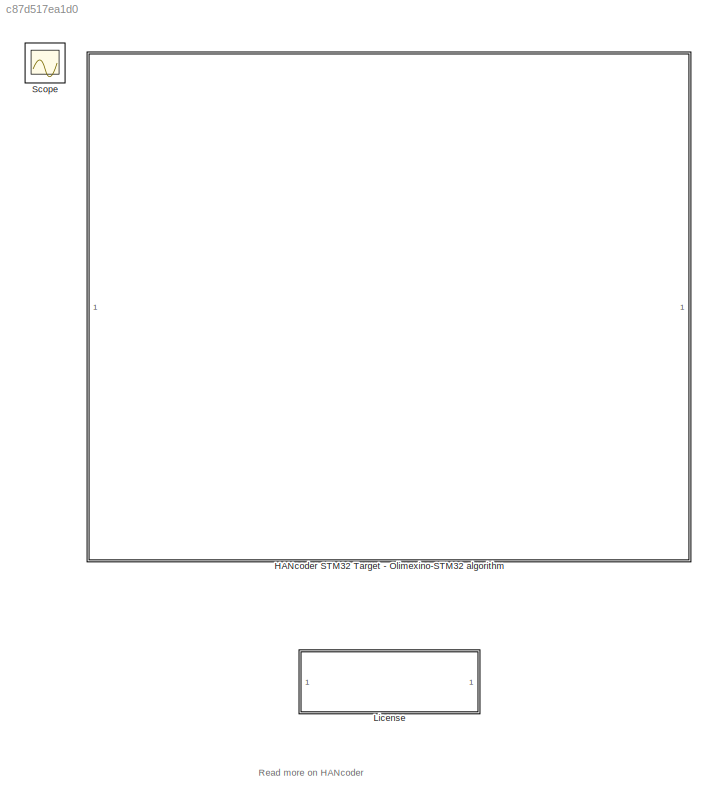
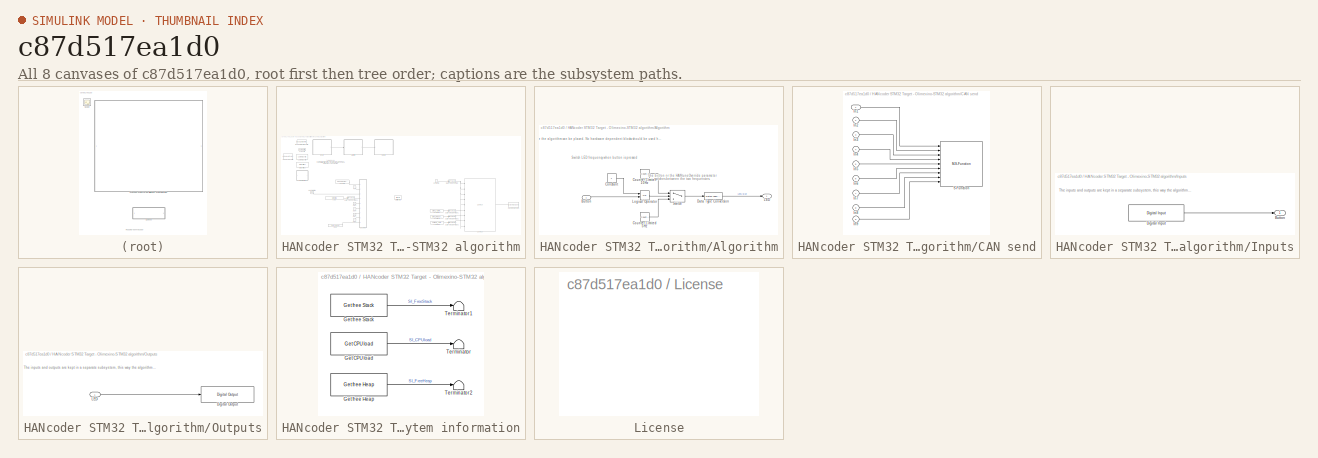
[diagram: thumbnail index - all 8 canvases of the model, root first then tree order]
MODEL slx_c87d517ea1d0
KIND model
CONFIG AbsTol = auto
CONFIG EnableMultiTasking = off
CONFIG FixedStep = 0.01
CONFIG MaxStep = auto
CONFIG MinStep = auto
CONFIG PreLoadFcn = librarySetup\neval([bdroot,'_startup']) %Calling [modelName]_startup.m
CONFIG RelTol = 1e-3
CONFIG SampleTimeConstraint = Unconstrained
CONFIG Solver = FixedStepDiscrete
CONFIG SolverName = FixedStepDiscrete
CONFIG StartTime = 0.0
CONFIG StopTime = 2
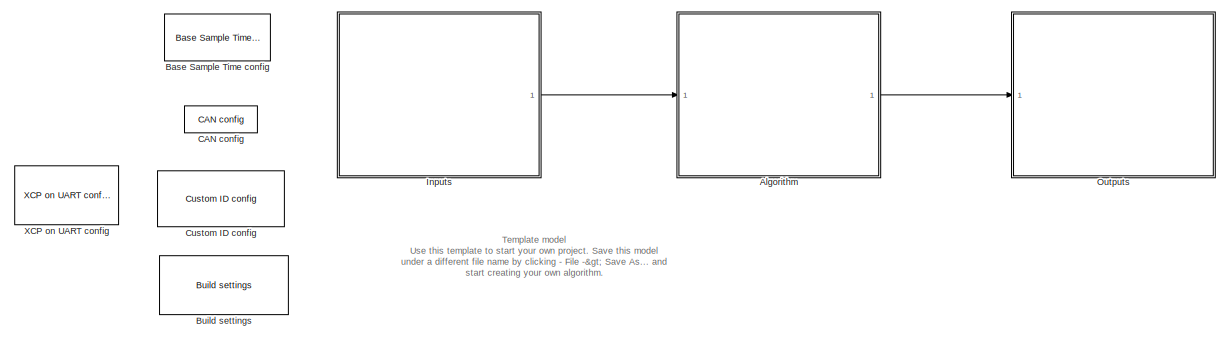
[diagram: HANcoder STM32 Target - Olimexino-STM32 algorithm - part 1/3, top left region]
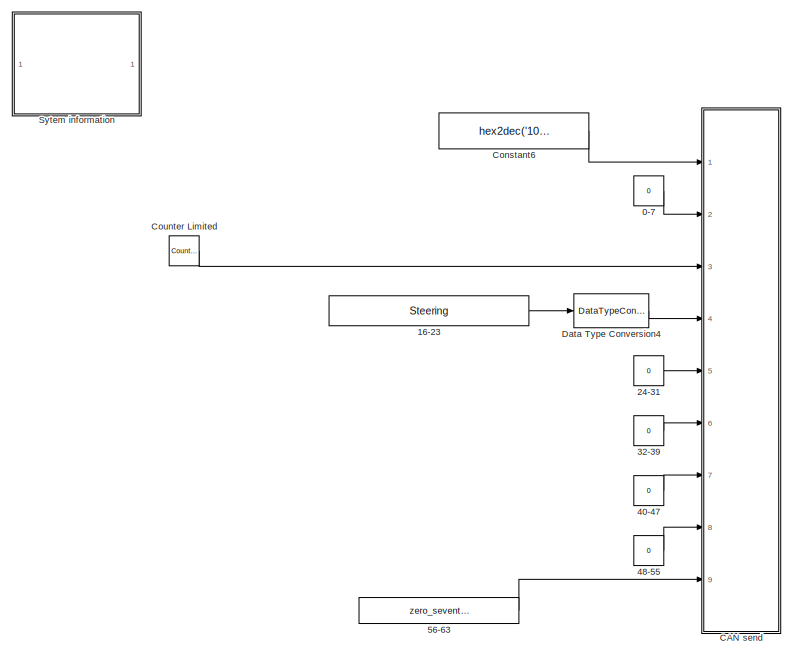
[diagram: HANcoder STM32 Target - Olimexino-STM32 algorithm - part 2/3, middle left region]
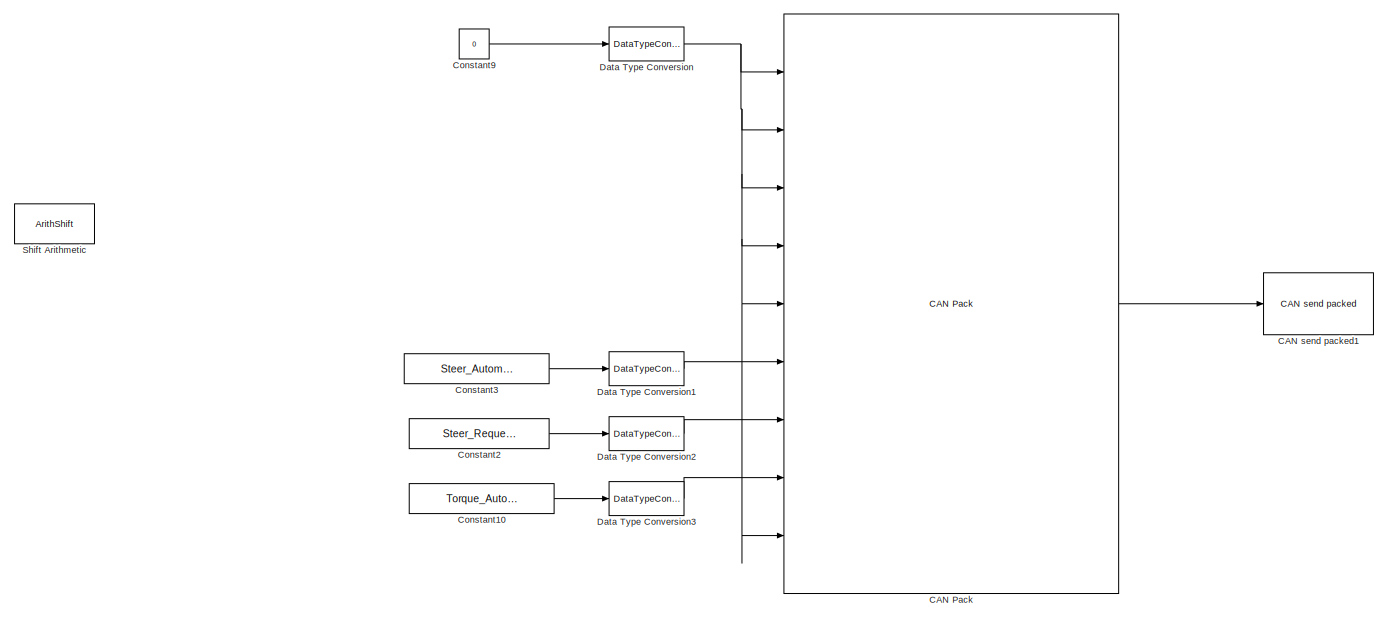
[diagram: HANcoder STM32 Target - Olimexino-STM32 algorithm - part 3/3, bottom right region]
BLOCK [SubSystem] HANcoder STM32 Target - Olimexino-STM32 algorithm
  CopyFcn = HANcoderChecks('Copy');
  MoveFcn = HANcoderChecks('MoveOlimexino');
  NameChangeFcn = HANcoderChecks('NameChangeOlimexino');
  Ports = []
  RequestExecContextInheritance = off
BLOCK [Constant] HANcoder STM32 Target - Olimexino-STM32 algorithm/0-7
  Commented = on
  OutDataTypeStr = uint8
  Value = 0
BLOCK [Constant] HANcoder STM32 Target - Olimexino-STM32 algorithm/16-23
  Commented = on
  OutDataTypeStr = int8
  Value = Steering
BLOCK [Constant] HANcoder STM32 Target - Olimexino-STM32 algorithm/24-31
  Commented = on
  OutDataTypeStr = uint8
  Value = 0
BLOCK [Constant] HANcoder STM32 Target - Olimexino-STM32 algorithm/32-39
  Commented = on
  OutDataTypeStr = uint8
  Value = 0
BLOCK [Constant] HANcoder STM32 Target - Olimexino-STM32 algorithm/40-47
  Commented = on
  OutDataTypeStr = uint8
  Value = 0
BLOCK [Constant] HANcoder STM32 Target - Olimexino-STM32 algorithm/48-55
  Commented = on
  OutDataTypeStr = uint8
  Value = 0
BLOCK [Constant] HANcoder STM32 Target - Olimexino-STM32 algorithm/56-63
  Commented = on
  OutDataTypeStr = uint8
  Value = zero_seventeen
BLOCK [SubSystem] HANcoder STM32 Target - Olimexino-STM32 algorithm/Algorithm
  Ports = [1, 1]
  RequestExecContextInheritance = off
BLOCK [Inport] HANcoder STM32 Target - Olimexino-STM32 algorithm/Algorithm/Button
  IconDisplay = Port number
BLOCK [Constant] HANcoder STM32 Target - Olimexino-STM32 algorithm/Algorithm/Constant
BLOCK [Reference] HANcoder STM32 Target - Olimexino-STM32 algorithm/Algorithm/Counter Limited 10Hz  REF=simulink/Sources/Counter
Limited
  Ports = [0, 1]
  SourceBlock = simulink/Sources/Counter\nLimited
  SourceProductBaseCode = SL
  SourceProductName = Simulink
  SourceType = Counter Limited
BLOCK [Reference] HANcoder STM32 Target - Olimexino-STM32 algorithm/Algorithm/Counter Limited 5Hz  REF=simulink/Sources/Counter
Limited
  Ports = [0, 1]
  SourceBlock = simulink/Sources/Counter\nLimited
  SourceProductBaseCode = SL
  SourceProductName = Simulink
  SourceType = Counter Limited
BLOCK [DataTypeConversion] HANcoder STM32 Target - Olimexino-STM32 algorithm/Algorithm/Data Type Conversion
  OutDataTypeStr = boolean
  RndMeth = Floor
  SaturateOnIntegerOverflow = off
BLOCK [Outport] HANcoder STM32 Target - Olimexino-STM32 algorithm/Algorithm/LED
  IconDisplay = Port number
BLOCK [Logic] HANcoder STM32 Target - Olimexino-STM32 algorithm/Algorithm/Logical Operator
  AllPortsSameDT = off
  Operator = OR
  OutDataTypeStr = boolean
  Ports = [2, 1]
BLOCK [Switch] HANcoder STM32 Target - Olimexino-STM32 algorithm/Algorithm/Switch
  Criteria = u2 > Threshold
  InputSameDT = off
  SaturateOnIntegerOverflow = off
BLOCK [Reference] HANcoder STM32 Target - Olimexino-STM32 algorithm/Base Sample Time config  REF=HANcoder_STM32_Target/Olimexino STM32/System Config/Base Sample Time config
  Description = HANcoder Target STM32-Olimexino blockset version 1.1
  Ports = []
  SourceBlock = HANcoder_STM32_Target/Olimexino STM32/System Config/Base Sample Time config
  SourceProductName = HANcoder STM32 Target
  SourceType = Base Sample Time config
  Tag = HANcoder_TARGET_STM32_Olimexino
  UserDataPersistent = on
BLOCK [Reference] HANcoder STM32 Target - Olimexino-STM32 algorithm/Build settings  REF=HANcoder_STM32_Target/Olimexino STM32/System Config/Build settings
  Ports = []
  SourceBlock = HANcoder_STM32_Target/Olimexino STM32/System Config/Build settings
  SourceProductName = HANcoder STM32 Target
  SourceType = Build Settings
  Tag = HANcoder_TARGET_STM32_Olimexino
  UserDataPersistent = on
BLOCK [Reference] HANcoder STM32 Target - Olimexino-STM32 algorithm/CAN Pack  REF=canmsglib/CAN Pack
  Commented = on
  Ports = [9, 1]
  SourceBlock = canmsglib/CAN Pack
  SourceProductBaseCode = XP
  SourceProductName = Simulink Real-Time
  SourceType = CAN Pack
BLOCK [Reference] HANcoder STM32 Target - Olimexino-STM32 algorithm/CAN config  REF=HANcoder_STM32_Target/Olimexino STM32/System Config/CAN config
  Ports = []
  SourceBlock = HANcoder_STM32_Target/Olimexino STM32/System Config/CAN config
  SourceProductName = HANcoder STM32 Target
  SourceType = CAN config
  Tag = HANcoder_TARGET_STM32_Olimexino
  UserDataPersistent = on
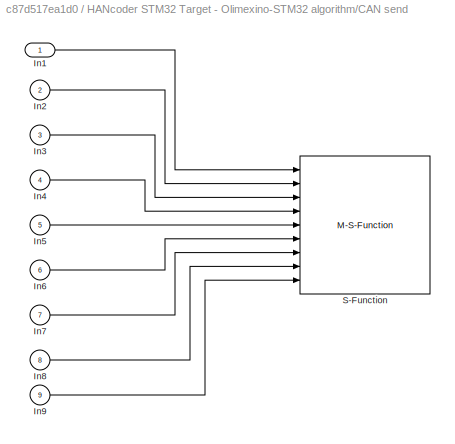
BLOCK [SubSystem] HANcoder STM32 Target - Olimexino-STM32 algorithm/CAN send
  AncestorBlock = HANcoder_STM32_Target/Olimexino STM32/CAN/CAN/CAN send
  Commented = on
  MoveFcn = drawLogos
  Ports = [9]
  RequestExecContextInheritance = off
  Tag = HANcoder_TARGET_STM32_Olimexino
  UserDataPersistent = on
BLOCK [Reference] HANcoder STM32 Target - Olimexino-STM32 algorithm/CAN send packed1  REF=HANcoder_STM32_Target/Olimexino STM32/CAN/CAN/CAN send packed
  Commented = on
  Ports = [1]
  SourceBlock = HANcoder_STM32_Target/Olimexino STM32/CAN/CAN/CAN send packed
  SourceProductName = HANcoder STM32 Target
  SourceType = CAN send packed
  Tag = HANcoder_TARGET_STM32_Olimexino
  UserDataPersistent = on
BLOCK [Inport] HANcoder STM32 Target - Olimexino-STM32 algorithm/CAN send/In1
  IconDisplay = Port number
BLOCK [Inport] HANcoder STM32 Target - Olimexino-STM32 algorithm/CAN send/In2
  IconDisplay = Port number
  Port = 2
BLOCK [Inport] HANcoder STM32 Target - Olimexino-STM32 algorithm/CAN send/In3
  IconDisplay = Port number
  Port = 3
BLOCK [Inport] HANcoder STM32 Target - Olimexino-STM32 algorithm/CAN send/In4
  IconDisplay = Port number
  Port = 4
BLOCK [Inport] HANcoder STM32 Target - Olimexino-STM32 algorithm/CAN send/In5
  IconDisplay = Port number
  Port = 5
BLOCK [Inport] HANcoder STM32 Target - Olimexino-STM32 algorithm/CAN send/In6
  IconDisplay = Port number
  Port = 6
BLOCK [Inport] HANcoder STM32 Target - Olimexino-STM32 algorithm/CAN send/In7
  IconDisplay = Port number
  Port = 7
BLOCK [Inport] HANcoder STM32 Target - Olimexino-STM32 algorithm/CAN send/In8
  IconDisplay = Port number
  Port = 8
BLOCK [Inport] HANcoder STM32 Target - Olimexino-STM32 algorithm/CAN send/In9
  IconDisplay = Port number
  Port = 9
BLOCK [M-S-Function] HANcoder STM32 Target - Olimexino-STM32 algorithm/CAN send/S-Function
  FunctionName = sfcn_can_send
  Parameters = tsamp, canBus, frameType, inputNumber, dataType, byteOrder
  Ports = [9]
BLOCK [Constant] HANcoder STM32 Target - Olimexino-STM32 algorithm/Constant10
  Commented = on
  OutDataTypeStr = single
  SampleTime = -1
  Value = Torque_Automation_Requested
BLOCK [Constant] HANcoder STM32 Target - Olimexino-STM32 algorithm/Constant2
  Commented = on
  OutDataTypeStr = single
  SampleTime = -1
  Value = Steer_Request
BLOCK [Constant] HANcoder STM32 Target - Olimexino-STM32 algorithm/Constant3
  Commented = on
  OutDataTypeStr = single
  SampleTime = -1
  Value = Steer_Automation_Requested
BLOCK [Constant] HANcoder STM32 Target - Olimexino-STM32 algorithm/Constant6
  Commented = on
  OutDataTypeStr = uint32
  SampleTime = -1
  Value = hex2dec('101')
BLOCK [Constant] HANcoder STM32 Target - Olimexino-STM32 algorithm/Constant9
  Commented = on
  OutDataTypeStr = single
  SampleTime = -1
  Value = 0
BLOCK [Reference] HANcoder STM32 Target - Olimexino-STM32 algorithm/Counter Limited  REF=simulink/Sources/Counter
Limited
  Commented = on
  Ports = [0, 1]
  SourceBlock = simulink/Sources/Counter\nLimited
  SourceProductBaseCode = SL
  SourceProductName = Simulink
  SourceType = Counter Limited
BLOCK [Reference] HANcoder STM32 Target - Olimexino-STM32 algorithm/Custom ID config  REF=HANcoder_STM32_Target/Olimexino STM32/System Config/Custom ID config
  Ports = []
  SourceBlock = HANcoder_STM32_Target/Olimexino STM32/System Config/Custom ID config
  SourceProductName = HANcoder STM32 Target
  SourceType = Custom ID config
  Tag = HANcoder_TARGET_STM32_Olimexino
  UserDataPersistent = on
BLOCK [DataTypeConversion] HANcoder STM32 Target - Olimexino-STM32 algorithm/Data Type Conversion
  Commented = on
  RndMeth = Floor
  SaturateOnIntegerOverflow = off
BLOCK [DataTypeConversion] HANcoder STM32 Target - Olimexino-STM32 algorithm/Data Type Conversion1
  Commented = on
  RndMeth = Floor
  SaturateOnIntegerOverflow = off
BLOCK [DataTypeConversion] HANcoder STM32 Target - Olimexino-STM32 algorithm/Data Type Conversion2
  Commented = on
  RndMeth = Floor
  SaturateOnIntegerOverflow = off
BLOCK [DataTypeConversion] HANcoder STM32 Target - Olimexino-STM32 algorithm/Data Type Conversion3
  Commented = on
  RndMeth = Floor
  SaturateOnIntegerOverflow = off
BLOCK [DataTypeConversion] HANcoder STM32 Target - Olimexino-STM32 algorithm/Data Type Conversion4
  Commented = on
  ConvertRealWorld = Stored Integer (SI)
  OutDataTypeStr = uint8
  RndMeth = Floor
  SaturateOnIntegerOverflow = off
BLOCK [SubSystem] HANcoder STM32 Target - Olimexino-STM32 algorithm/Inputs
  Ports = [0, 1]
  RequestExecContextInheritance = off
BLOCK [Outport] HANcoder STM32 Target - Olimexino-STM32 algorithm/Inputs/Button
  IconDisplay = Port number
BLOCK [Reference] HANcoder STM32 Target - Olimexino-STM32 algorithm/Inputs/Digital Input  REF=HANcoder_STM32_Target/Olimexino STM32/Digital Inputs/Digital Input
  Ports = [0, 1]
  SourceBlock = HANcoder_STM32_Target/Olimexino STM32/Digital Inputs/Digital Input
  SourceProductName = HANcoder STM32 Target
  SourceType = Digital Input
  Tag = HANcoder_TARGET_STM32_Olimexino
  UserDataPersistent = on
BLOCK [SubSystem] HANcoder STM32 Target - Olimexino-STM32 algorithm/Outputs
  Ports = [1]
  RequestExecContextInheritance = off
BLOCK [Reference] HANcoder STM32 Target - Olimexino-STM32 algorithm/Outputs/Digital Output  REF=HANcoder_STM32_Target/Olimexino STM32/Digital Outputs/Digital Output
  Ports = [1]
  SourceBlock = HANcoder_STM32_Target/Olimexino STM32/Digital Outputs/Digital Output
  SourceProductName = HANcoder STM32 Target
  SourceType = Digital Output
  Tag = HANcoder_TARGET_STM32_Olimexino
  UserDataPersistent = on
BLOCK [Inport] HANcoder STM32 Target - Olimexino-STM32 algorithm/Outputs/LED
  IconDisplay = Port number
BLOCK [ArithShift] HANcoder STM32 Target - Olimexino-STM32 algorithm/Shift Arithmetic
  BitShiftNumber = 8
  Commented = on
  InputPortMap = u0
  Ports = [1, 1]
BLOCK [SubSystem] HANcoder STM32 Target - Olimexino-STM32 algorithm/Sytem information
  Ports = []
  RequestExecContextInheritance = off
BLOCK [Reference] HANcoder STM32 Target - Olimexino-STM32 algorithm/Sytem information/Get CPU load  REF=HANcoder_STM32_Target/Olimexino STM32/System Management/Get CPU load
  Ports = [0, 1]
  SourceBlock = HANcoder_STM32_Target/Olimexino STM32/System Management/Get CPU load
  SourceProductName = HANcoder STM32 Target
  SourceType = Get CPU load
  Tag = HANcoder_TARGET_STM32_Olimexino
  UserDataPersistent = on
BLOCK [Reference] HANcoder STM32 Target - Olimexino-STM32 algorithm/Sytem information/Get free Heap  REF=HANcoder_STM32_Target/Olimexino STM32/System Management/Get free Heap
  Ports = [0, 1]
  SourceBlock = HANcoder_STM32_Target/Olimexino STM32/System Management/Get free Heap
  SourceProductName = HANcoder STM32 Target
  SourceType = Get free Heap
  Tag = HANcoder_TARGET_STM32_Olimexino
  UserDataPersistent = on
BLOCK [Reference] HANcoder STM32 Target - Olimexino-STM32 algorithm/Sytem information/Get free Stack  REF=HANcoder_STM32_Target/Olimexino STM32/System Management/Get free Stack
  Ports = [0, 1]
  SourceBlock = HANcoder_STM32_Target/Olimexino STM32/System Management/Get free Stack
  SourceProductName = HANcoder STM32 Target
  SourceType = Get free Stack
  Tag = HANcoder_TARGET_STM32_Olimexino
  UserDataPersistent = on
BLOCK [Terminator] HANcoder STM32 Target - Olimexino-STM32 algorithm/Sytem information/Terminator
BLOCK [Terminator] HANcoder STM32 Target - Olimexino-STM32 algorithm/Sytem information/Terminator1
BLOCK [Terminator] HANcoder STM32 Target - Olimexino-STM32 algorithm/Sytem information/Terminator2
BLOCK [Reference] HANcoder STM32 Target - Olimexino-STM32 algorithm/XCP on UART config  REF=HANcoder_STM32_Target/Olimexino STM32/System Config/XCP on UART config
  Ports = []
  SourceBlock = HANcoder_STM32_Target/Olimexino STM32/System Config/XCP on UART config
  SourceProductName = HANcoder STM32 Target
  SourceType = XCP on UART config
  Tag = HANcoder_TARGET_STM32_Olimexino
  UserDataPersistent = on
BLOCK [SubSystem] License
  MoveFcn = HANcoderChecks('MoveLicenseBlock');
  NameChangeFcn = HANcoderChecks('NameChangeLicenseBlock');
  OpenFcn = winopen('License.pdf')
  Ports = []
  RequestExecContextInheritance = off
  ShowPortLabels = none
BLOCK [Scope] Scope
  Floating = off
  IOType = viewer
  NumInputPorts = 1
  Ports = []
  ScopeSpecificationString = C++SS(StrPVP('Location','[176, 640, 919, 945]'),StrPVP('Open','off'),MxPVP('AxesTitles',53,'struct(''axes1'',''%<SignalLabel>'')'),MxPVP('ScopeGraphics',56,'struct(''FigureColor'',''[0.156862745098039 0.156862745098039 0.156862745098039]'',''AxesColor'',''[0 0 0]'',''AxesTickColor'',''[0.686274509803922 0.686274509803922 0.686274509803922]'',''LineColors'',''[1 1 0;1 0 1;0 1 1;1 0 0;0 1 0;0 0 1]''...<+404ch>
ANNOTATION (root): Read more on HANcoder
ANNOTATION HANcoder STM32 Target - Olimexino-STM32 algorithm: Template model Use this template to start your own project. Save this model under a different file name by clicking - File -> Save As... and start creating your own algorithm.
ANNOTATION HANcoder STM32 Target - Olimexino-STM32 algorithm/Algorithm: Here the algorithm can be placed. No hardware dependent blocks should be used here.
ANNOTATION HANcoder STM32 Target - Olimexino-STM32 algorithm/Algorithm: Switch LED frequency when button is pressed
ANNOTATION HANcoder STM32 Target - Olimexino-STM32 algorithm/Algorithm: The button or the HANtuneOverride parameter switches between the two frequencies.
ANNOTATION HANcoder STM32 Target - Olimexino-STM32 algorithm/Inputs: The inputs and outputs are kept in a separate subsystem, this way the algorithm can easily be transferred to different hardware
ANNOTATION HANcoder STM32 Target - Olimexino-STM32 algorithm/Outputs: The inputs and outputs are kept in a separate subsystem, this way the algorithm can easily be transferred to different hardware
LINE HANcoder STM32 Target - Olimexino-STM32 algorithm/0-7:1 -> HANcoder STM32 Target - Olimexino-STM32 algorithm/CAN send:2
LINE HANcoder STM32 Target - Olimexino-STM32 algorithm/16-23:1 -> HANcoder STM32 Target - Olimexino-STM32 algorithm/Data Type Conversion4:1
LINE HANcoder STM32 Target - Olimexino-STM32 algorithm/24-31:1 -> HANcoder STM32 Target - Olimexino-STM32 algorithm/CAN send:5
LINE HANcoder STM32 Target - Olimexino-STM32 algorithm/32-39:1 -> HANcoder STM32 Target - Olimexino-STM32 algorithm/CAN send:6
LINE HANcoder STM32 Target - Olimexino-STM32 algorithm/40-47:1 -> HANcoder STM32 Target - Olimexino-STM32 algorithm/CAN send:7
LINE HANcoder STM32 Target - Olimexino-STM32 algorithm/48-55:1 -> HANcoder STM32 Target - Olimexino-STM32 algorithm/CAN send:8
LINE HANcoder STM32 Target - Olimexino-STM32 algorithm/56-63:1 -> HANcoder STM32 Target - Olimexino-STM32 algorithm/CAN send:9
LINE HANcoder STM32 Target - Olimexino-STM32 algorithm/Algorithm/Button:1 -> HANcoder STM32 Target - Olimexino-STM32 algorithm/Algorithm/Logical Operator:2
LINE HANcoder STM32 Target - Olimexino-STM32 algorithm/Algorithm/Constant:1 -> HANcoder STM32 Target - Olimexino-STM32 algorithm/Algorithm/Logical Operator:1
LINE HANcoder STM32 Target - Olimexino-STM32 algorithm/Algorithm/Counter Limited 10Hz:1 -> HANcoder STM32 Target - Olimexino-STM32 algorithm/Algorithm/Switch:1
LINE HANcoder STM32 Target - Olimexino-STM32 algorithm/Algorithm/Counter Limited 5Hz:1 -> HANcoder STM32 Target - Olimexino-STM32 algorithm/Algorithm/Switch:3
LINE HANcoder STM32 Target - Olimexino-STM32 algorithm/Algorithm/Data Type Conversion:1 -> HANcoder STM32 Target - Olimexino-STM32 algorithm/Algorithm/LED:1
LINE HANcoder STM32 Target - Olimexino-STM32 algorithm/Algorithm/Logical Operator:1 -> HANcoder STM32 Target - Olimexino-STM32 algorithm/Algorithm/Switch:2
LINE HANcoder STM32 Target - Olimexino-STM32 algorithm/Algorithm/Switch:1 -> HANcoder STM32 Target - Olimexino-STM32 algorithm/Algorithm/Data Type Conversion:1
LINE HANcoder STM32 Target - Olimexino-STM32 algorithm/Algorithm:1 -> HANcoder STM32 Target - Olimexino-STM32 algorithm/Outputs:1
LINE HANcoder STM32 Target - Olimexino-STM32 algorithm/CAN Pack:1 -> HANcoder STM32 Target - Olimexino-STM32 algorithm/CAN send packed1:1
LINE HANcoder STM32 Target - Olimexino-STM32 algorithm/Constant10:1 -> HANcoder STM32 Target - Olimexino-STM32 algorithm/Data Type Conversion3:1
LINE HANcoder STM32 Target - Olimexino-STM32 algorithm/Constant2:1 -> HANcoder STM32 Target - Olimexino-STM32 algorithm/Data Type Conversion2:1
LINE HANcoder STM32 Target - Olimexino-STM32 algorithm/Constant3:1 -> HANcoder STM32 Target - Olimexino-STM32 algorithm/Data Type Conversion1:1
LINE HANcoder STM32 Target - Olimexino-STM32 algorithm/Constant6:1 -> HANcoder STM32 Target - Olimexino-STM32 algorithm/CAN send:1
LINE HANcoder STM32 Target - Olimexino-STM32 algorithm/Constant9:1 -> HANcoder STM32 Target - Olimexino-STM32 algorithm/Data Type Conversion:1
LINE HANcoder STM32 Target - Olimexino-STM32 algorithm/Counter Limited:1 -> HANcoder STM32 Target - Olimexino-STM32 algorithm/CAN send:3
LINE HANcoder STM32 Target - Olimexino-STM32 algorithm/Data Type Conversion1:1 -> HANcoder STM32 Target - Olimexino-STM32 algorithm/CAN Pack:6
LINE HANcoder STM32 Target - Olimexino-STM32 algorithm/Data Type Conversion2:1 -> HANcoder STM32 Target - Olimexino-STM32 algorithm/CAN Pack:7
LINE HANcoder STM32 Target - Olimexino-STM32 algorithm/Data Type Conversion3:1 -> HANcoder STM32 Target - Olimexino-STM32 algorithm/CAN Pack:8
LINE HANcoder STM32 Target - Olimexino-STM32 algorithm/Data Type Conversion4:1 -> HANcoder STM32 Target - Olimexino-STM32 algorithm/CAN send:4
NET HANcoder STM32 Target - Olimexino-STM32 algorithm/Data Type Conversion:1 -> HANcoder STM32 Target - Olimexino-STM32 algorithm/CAN Pack:1, HANcoder STM32 Target - Olimexino-STM32 algorithm/CAN Pack:2, HANcoder STM32 Target - Olimexino-STM32 algorithm/CAN Pack:3, HANcoder STM32 Target - Olimexino-STM32 algorithm/CAN Pack:4, HANcoder STM32 Target - Olimexino-STM32 algorithm/CAN Pack:5, HANcoder STM32 Target - Olimexino-STM32 algorithm/CAN Pack:9
LINE HANcoder STM32 Target - Olimexino-STM32 algorithm/Inputs/Digital Input:1 -> HANcoder STM32 Target - Olimexino-STM32 algorithm/Inputs/Button:1
LINE HANcoder STM32 Target - Olimexino-STM32 algorithm/Inputs:1 -> HANcoder STM32 Target - Olimexino-STM32 algorithm/Algorithm:1
LINE HANcoder STM32 Target - Olimexino-STM32 algorithm/Outputs/LED:1 -> HANcoder STM32 Target - Olimexino-STM32 algorithm/Outputs/Digital Output:1
LINE HANcoder STM32 Target - Olimexino-STM32 algorithm/Sytem information/Get CPU load:1 -> HANcoder STM32 Target - Olimexino-STM32 algorithm/Sytem information/Terminator:1
LINE HANcoder STM32 Target - Olimexino-STM32 algorithm/Sytem information/Get free Heap:1 -> HANcoder STM32 Target - Olimexino-STM32 algorithm/Sytem information/Terminator2:1
LINE HANcoder STM32 Target - Olimexino-STM32 algorithm/Sytem information/Get free Stack:1 -> HANcoder STM32 Target - Olimexino-STM32 algorithm/Sytem information/Terminator1:1
note: NET lines group one-source signal fan-out (src -> all destinations, sorted); 1:1 wires keep LINE
